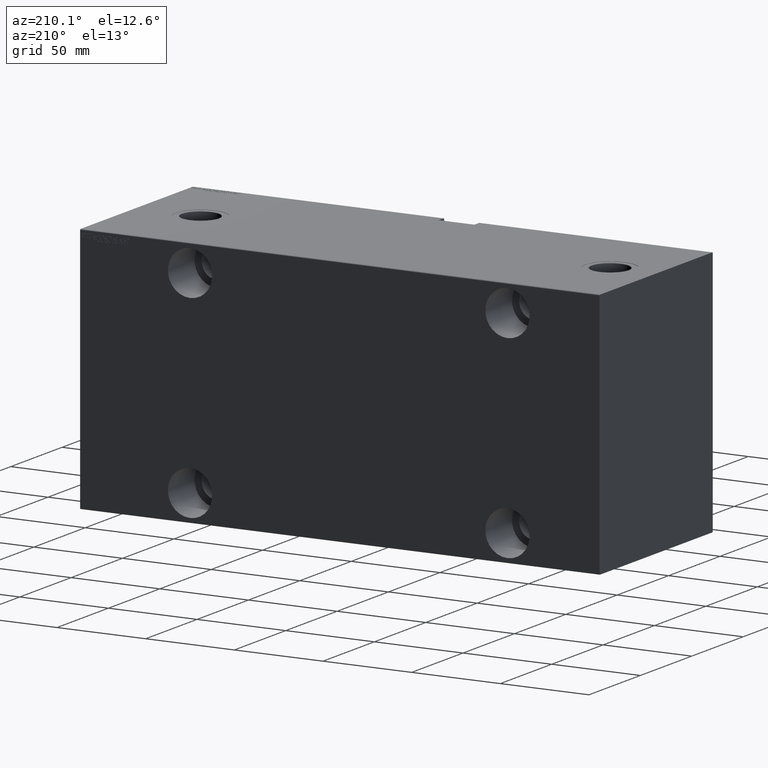
[diagram: clean part render]
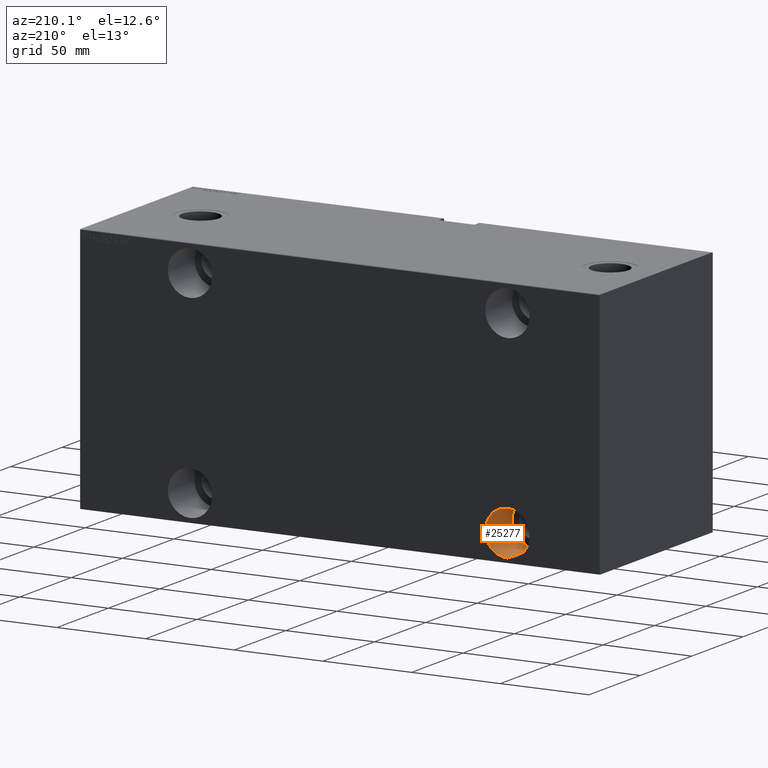
[diagram: same view with one face highlighted and labeled with its STEP entity id]
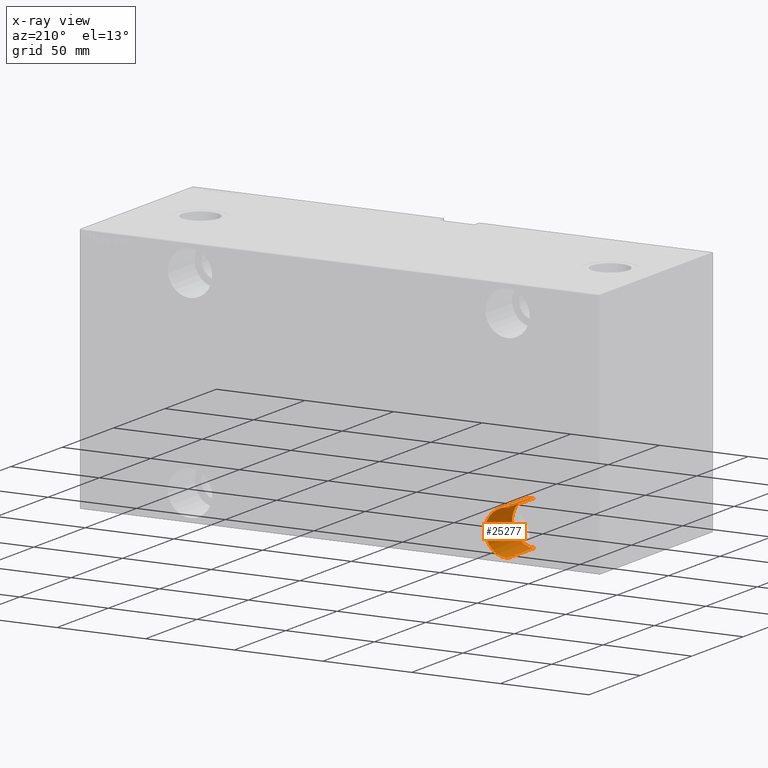
[diagram: x-ray of the same camera — body ghosted, the highlighted face saturated]
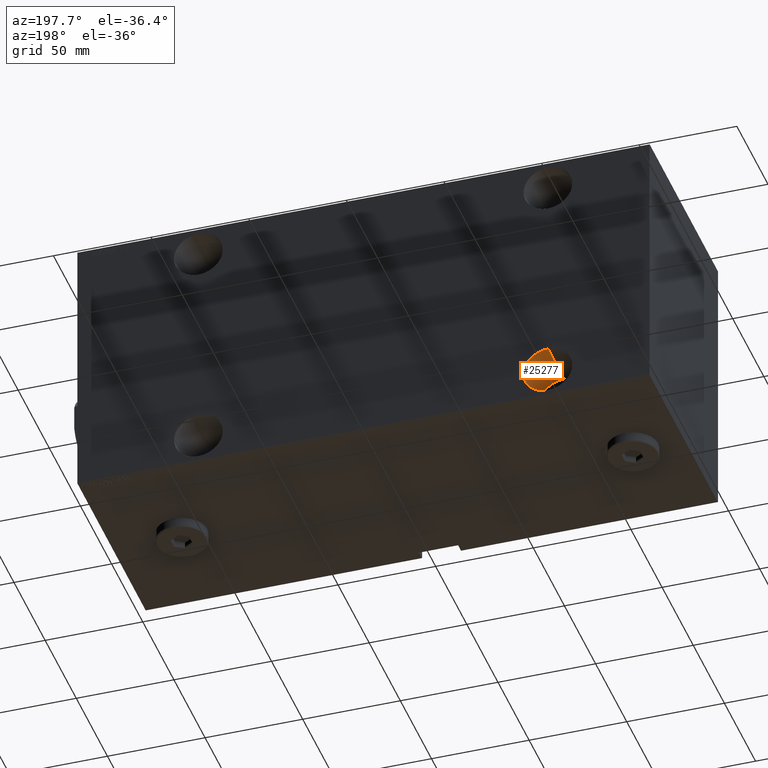
[diagram: same view with one face highlighted and labeled with its STEP entity id]
A machine part, auxiliary view. The second image highlights one B-rep face of the part: STEP entity #25277.
The next image is the same camera in x-ray: the body ghosted, the highlighted face saturated — about 0% of this face is hidden behind the body in this view.
A second angle (auxiliary view) of the same face is appended — the face is thin or edge-on in the first view.
In plain terms, the highlighted cylindrical surface (edge-blend (fillet) strip) has radius 12.5 mm, axis along (0, 1, -0).
Its self-contained STEP definition (entity closure, byte-faithful):
#766 = CARTESIAN_POINT ( 'NONE',  ( 241.0000000000000000, -54.99999999999999289, -67.50000000000002842 ) ) ;
#1372 = ORIENTED_EDGE ( 'NONE', *, *, #29794, .T. ) ;
#1877 = DIRECTION ( 'NONE',  ( 0.000000000000000000, 0.000000000000000000, -1.000000000000000000 ) ) ;
#7172 = AXIS2_PLACEMENT_3D ( 'NONE', #42254, #11733, #1877 ) ;
#10079 = CARTESIAN_POINT ( 'NONE',  ( 241.0000000000000000, -54.99999999999999289, -55.00000000000002132 ) ) ;
#11010 = CARTESIAN_POINT ( 'NONE',  ( 241.0000000000000000, -54.99999999999999289, -42.50000000000001421 ) ) ;
#11104 = ORIENTED_EDGE ( 'NONE', *, *, #39527, .F. ) ;
#11733 = DIRECTION ( 'NONE',  ( -0.000000000000000000, -1.000000000000000000, -0.000000000000000000 ) ) ;
#12296 = CARTESIAN_POINT ( 'NONE',  ( 241.0000000000000000, -28.99999999999999289, -55.00000000000002132 ) ) ;
#13205 = AXIS2_PLACEMENT_3D ( 'NONE', #12296, #42373, #29384 ) ;
#15012 = CIRCLE ( 'NONE', #25049, 12.50000000000001066 ) ;
#15363 = VERTEX_POINT ( 'NONE', #31614 ) ;
#16767 = LINE ( 'NONE', #19921, #19385 ) ;
#18696 = CYLINDRICAL_SURFACE ( 'NONE', #7172, 12.50000000000001066 ) ;
#19385 = VECTOR ( 'NONE', #33625, 1000.000000000000000 ) ;
#19921 = CARTESIAN_POINT ( 'NONE',  ( 241.0000000000000000, -28.99999999999999289, -67.50000000000002842 ) ) ;
#20835 = CARTESIAN_POINT ( 'NONE',  ( 241.0000000000000000, -28.99999999999999289, -42.50000000000001421 ) ) ;
#22516 = FACE_OUTER_BOUND ( 'NONE', #32925, .T. ) ;
#22793 = VERTEX_POINT ( 'NONE', #44232 ) ;
#23191 = ORIENTED_EDGE ( 'NONE', *, *, #23988, .T. ) ;
#23988 = EDGE_CURVE ( 'NONE', #24628, #26743, #15012, .T. ) ;
#24584 = ORIENTED_EDGE ( 'NONE', *, *, #25641, .F. ) ;
#24628 = VERTEX_POINT ( 'NONE', #11010 ) ;
#25049 = AXIS2_PLACEMENT_3D ( 'NONE', #10079, #26923, #40602 ) ;
#25277 = ADVANCED_FACE ( 'NONE', ( #22516 ), #18696, .F. ) ;
#25641 = EDGE_CURVE ( 'NONE', #15363, #26743, #16767, .T. ) ;
#26743 = VERTEX_POINT ( 'NONE', #766 ) ;
#26923 = DIRECTION ( 'NONE',  ( 0.000000000000000000, -1.000000000000000000, 0.000000000000000000 ) ) ;
#28012 = LINE ( 'NONE', #20835, #31709 ) ;
#29384 = DIRECTION ( 'NONE',  ( 0.000000000000000000, 0.000000000000000000, -1.000000000000000000 ) ) ;
#29794 = EDGE_CURVE ( 'NONE', #22793, #24628, #28012, .T. ) ;
#31119 = CIRCLE ( 'NONE', #13205, 12.50000000000001066 ) ;
#31614 = CARTESIAN_POINT ( 'NONE',  ( 241.0000000000000000, -28.99999999999999289, -67.50000000000002842 ) ) ;
#31709 = VECTOR ( 'NONE', #34530, 1000.000000000000000 ) ;
#32925 = EDGE_LOOP ( 'NONE', ( #11104, #1372, #23191, #24584 ) ) ;
#33625 = DIRECTION ( 'NONE',  ( -0.000000000000000000, -1.000000000000000000, -0.000000000000000000 ) ) ;
#34530 = DIRECTION ( 'NONE',  ( -0.000000000000000000, -1.000000000000000000, -0.000000000000000000 ) ) ;
#39527 = EDGE_CURVE ( 'NONE', #22793, #15363, #31119, .T. ) ;
#40602 = DIRECTION ( 'NONE',  ( 0.000000000000000000, 0.000000000000000000, -1.000000000000000000 ) ) ;
#42254 = CARTESIAN_POINT ( 'NONE',  ( 241.0000000000000000, -28.99999999999999289, -55.00000000000002132 ) ) ;
#42373 = DIRECTION ( 'NONE',  ( 0.000000000000000000, -1.000000000000000000, 0.000000000000000000 ) ) ;
#44232 = CARTESIAN_POINT ( 'NONE',  ( 241.0000000000000000, -28.99999999999999289, -42.50000000000001421 ) ) ;